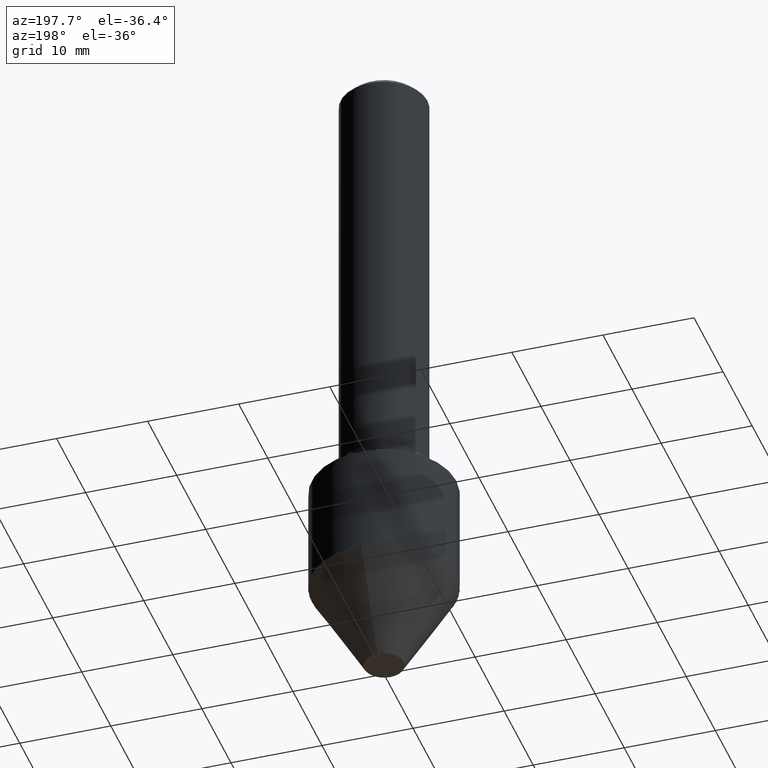
[diagram: clean part render]
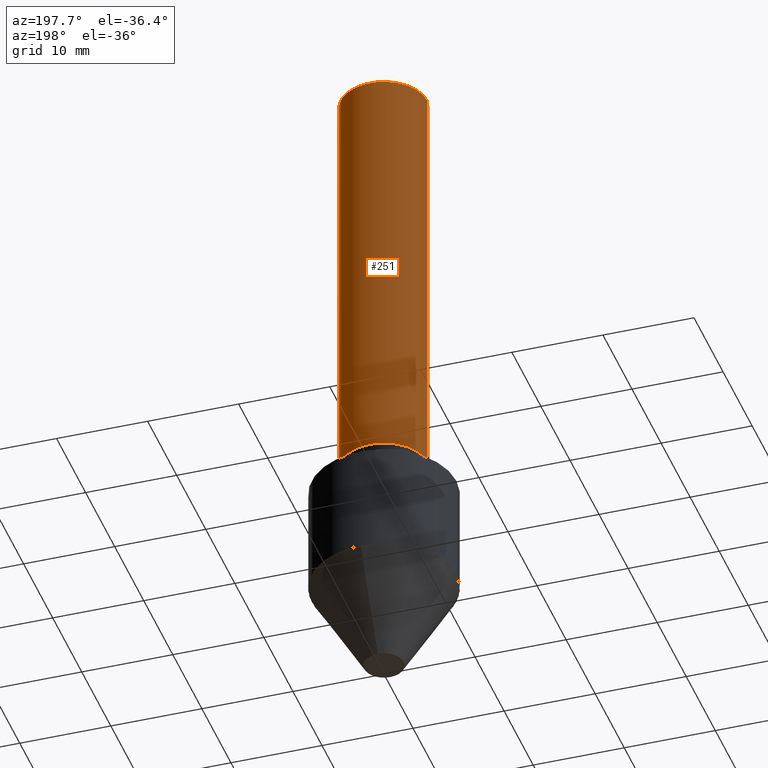
[diagram: same view with one face highlighted and labeled with its STEP entity id]
A machine part, auxiliary view. The second image highlights one B-rep face of the part: STEP entity #251.
In plain terms, the highlighted cylindrical surface (partial cylindrical patch) has radius 4.7625 mm, axis along (-0, 0, 1).
Its self-contained STEP definition (entity closure, byte-faithful):
#2 = DIRECTION ( 'NONE',  ( -2.445468806185136877E-29, 3.491481338843145188E-15, 1.000000000000000000 ) ) ;
#16 = EDGE_LOOP ( 'NONE', ( #111, #430, #466, #209 ) ) ;
#29 = FACE_OUTER_BOUND ( 'NONE', #16, .T. ) ;
#41 = LINE ( 'NONE', #357, #441 ) ;
#46 = EDGE_CURVE ( 'NONE', #303, #507, #41, .T. ) ;
#111 = ORIENTED_EDGE ( 'NONE', *, *, #169, .T. ) ;
#115 = CIRCLE ( 'NONE', #130, 0.1875000000000002498 ) ;
#130 = AXIS2_PLACEMENT_3D ( 'NONE', #168, #508, #173 ) ;
#134 = DIRECTION ( 'NONE',  ( 1.000000000000000000, -6.982962677686265922E-15, 0.000000000000000000 ) ) ;
#140 = CARTESIAN_POINT ( 'NONE',  ( -0.1875000000000002498, -5.005845661302559902E-15, -1.880000000000000338 ) ) ;
#161 = CARTESIAN_POINT ( 'NONE',  ( -0.1875000000000001110, 1.332267629550188637E-15, -9.223003294227953596E-30 ) ) ;
#168 = CARTESIAN_POINT ( 'NONE',  ( 4.597481355628058013E-29, -6.563984917025115320E-15, -1.880000000000000338 ) ) ;
#169 = EDGE_CURVE ( 'NONE', #303, #424, #115, .T. ) ;
#173 = DIRECTION ( 'NONE',  ( 1.000000000000000000, -6.982962677686269077E-15, 0.000000000000000000 ) ) ;
#179 = CARTESIAN_POINT ( 'NONE',  ( -0.1875000000000000278, 1.200371284294268058E-15, -0.03120000000000022755 ) ) ;
#181 = CYLINDRICAL_SURFACE ( 'NONE', #189, 0.1875000000000001110 ) ;
#185 = EDGE_CURVE ( 'NONE', #424, #309, #384, .T. ) ;
#189 = AXIS2_PLACEMENT_3D ( 'NONE', #297, #221, #461 ) ;
#201 = CARTESIAN_POINT ( 'NONE',  ( 7.629862675297681829E-31, -1.089342177719069380E-16, -0.03120000000000022755 ) ) ;
#209 = ORIENTED_EDGE ( 'NONE', *, *, #46, .F. ) ;
#221 = DIRECTION ( 'NONE',  ( -2.445468806185136597E-29, 3.491481338843145583E-15, 1.000000000000000000 ) ) ;
#245 = AXIS2_PLACEMENT_3D ( 'NONE', #201, #444, #134 ) ;
#251 = ADVANCED_FACE ( 'NONE', ( #29 ), #181, .T. ) ;
#297 = CARTESIAN_POINT ( 'NONE',  ( 0.000000000000000000, 0.000000000000000000, 0.000000000000000000 ) ) ;
#303 = VERTEX_POINT ( 'NONE', #416 ) ;
#309 = VERTEX_POINT ( 'NONE', #179 ) ;
#328 = DIRECTION ( 'NONE',  ( -2.445468806185136877E-29, 3.491481338843145188E-15, 1.000000000000000000 ) ) ;
#357 = CARTESIAN_POINT ( 'NONE',  ( 0.1875000000000001110, -1.309305502066175797E-15, 9.142831454617385217E-30 ) ) ;
#384 = LINE ( 'NONE', #161, #478 ) ;
#416 = CARTESIAN_POINT ( 'NONE',  ( 0.1875000000000002498, -7.873290419091291906E-15, -1.880000000000000338 ) ) ;
#424 = VERTEX_POINT ( 'NONE', #140 ) ;
#430 = ORIENTED_EDGE ( 'NONE', *, *, #185, .T. ) ;
#434 = CIRCLE ( 'NONE', #245, 0.1875000000000000278 ) ;
#441 = VECTOR ( 'NONE', #2, 39.37007874015748143 ) ;
#444 = DIRECTION ( 'NONE',  ( -2.445468806185136597E-29, 3.491481338843145583E-15, 1.000000000000000000 ) ) ;
#461 = DIRECTION ( 'NONE',  ( 1.000000000000000000, -6.982962677686266711E-15, 4.876176775795935793E-29 ) ) ;
#466 = ORIENTED_EDGE ( 'NONE', *, *, #502, .F. ) ;
#478 = VECTOR ( 'NONE', #328, 39.37007874015748143 ) ;
#485 = CARTESIAN_POINT ( 'NONE',  ( 0.1875000000000000278, -1.395277592354069315E-15, -0.03120000000000022755 ) ) ;
#502 = EDGE_CURVE ( 'NONE', #507, #309, #434, .T. ) ;
#507 = VERTEX_POINT ( 'NONE', #485 ) ;
#508 = DIRECTION ( 'NONE',  ( -2.445468806185136597E-29, 3.491481338843145583E-15, 1.000000000000000000 ) ) ;